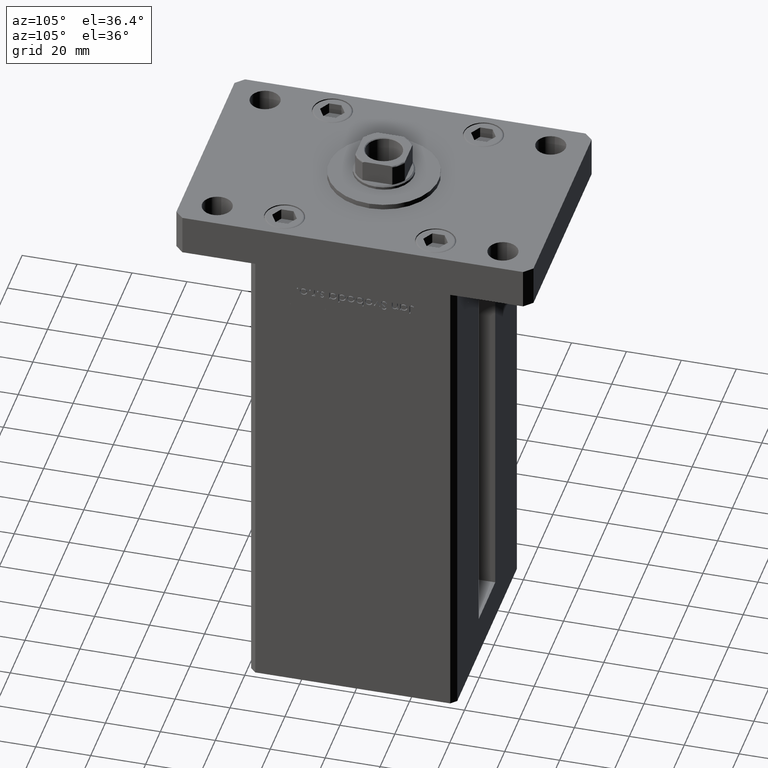
[diagram: clean part render]
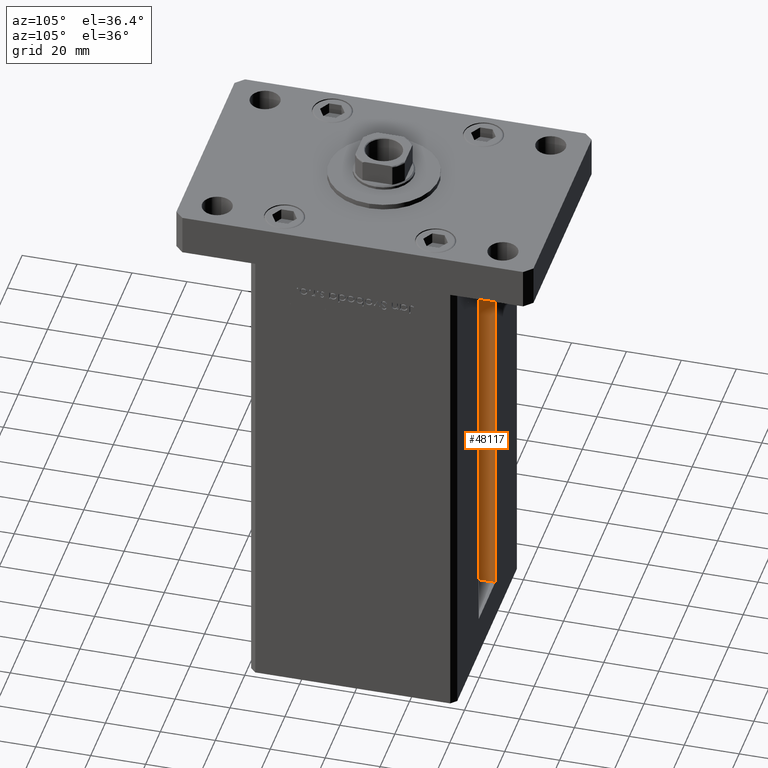
[diagram: same view with one face highlighted and labeled with its STEP entity id]
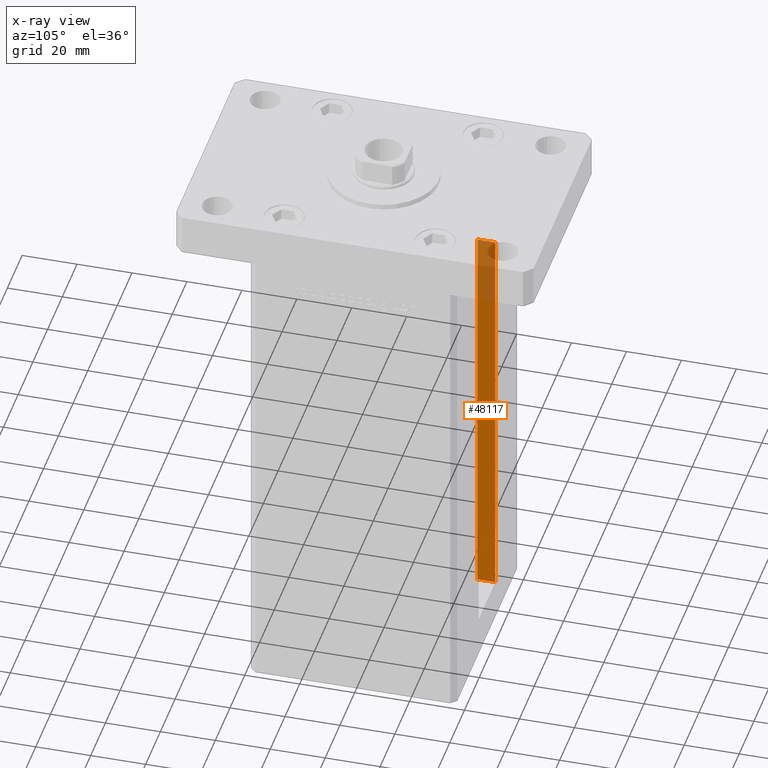
[diagram: x-ray of the same camera — body ghosted, the highlighted face saturated]
A machine part, auxiliary view. The second image highlights one B-rep face of the part: STEP entity #48117.
The next image is the same camera in x-ray: the body ghosted, the highlighted face saturated — about 24% of this face is hidden behind the body in this view.
In plain terms, the highlighted planar face has unit normal (-1, 0, 0).
Its self-contained STEP definition (entity closure, byte-faithful):
#173 = EDGE_CURVE ( 'NONE', #11369, #37025, #2906, .T. ) ;
#683 = VECTOR ( 'NONE', #26848, 1000.000000000000000 ) ;
#1005 = EDGE_CURVE ( 'NONE', #37025, #9671, #47970, .T. ) ;
#2202 = CARTESIAN_POINT ( 'NONE',  ( -11.25000000000000000, 37.50000000000000000, 148.5000000000000000 ) ) ;
#2435 = EDGE_CURVE ( 'NONE', #11369, #44290, #19723, .T. ) ;
#2906 = LINE ( 'NONE', #26575, #11865 ) ;
#4683 = CARTESIAN_POINT ( 'NONE',  ( -11.25000000000000000, 0.000000000000000000, 148.5000000000000000 ) ) ;
#6512 = ORIENTED_EDGE ( 'NONE', *, *, #2435, .T. ) ;
#6836 = VECTOR ( 'NONE', #17156, 1000.000000000000000 ) ;
#9274 = FACE_OUTER_BOUND ( 'NONE', #15007, .T. ) ;
#9671 = VERTEX_POINT ( 'NONE', #53299 ) ;
#11369 = VERTEX_POINT ( 'NONE', #38219 ) ;
#11865 = VECTOR ( 'NONE', #47436, 1000.000000000000000 ) ;
#15007 = EDGE_LOOP ( 'NONE', ( #50067, #45451, #6512, #26290 ) ) ;
#15690 = CARTESIAN_POINT ( 'NONE',  ( -11.25000000000000000, 30.99999999999999289, 0.000000000000000000 ) ) ;
#17151 = DIRECTION ( 'NONE',  ( 0.000000000000000000, 0.000000000000000000, 1.000000000000000000 ) ) ;
#17156 = DIRECTION ( 'NONE',  ( 0.000000000000000000, 1.000000000000000000, 0.000000000000000000 ) ) ;
#19723 = LINE ( 'NONE', #44635, #683 ) ;
#26290 = ORIENTED_EDGE ( 'NONE', *, *, #40500, .F. ) ;
#26575 = CARTESIAN_POINT ( 'NONE',  ( -11.25000000000000000, 30.99999999999999289, 0.000000000000000000 ) ) ;
#26848 = DIRECTION ( 'NONE',  ( -0.000000000000000000, -0.000000000000000000, 1.000000000000000000 ) ) ;
#27489 = VECTOR ( 'NONE', #52584, 1000.000000000000000 ) ;
#30152 = DIRECTION ( 'NONE',  ( -1.000000000000000000, 0.000000000000000000, 0.000000000000000000 ) ) ;
#37025 = VERTEX_POINT ( 'NONE', #47696 ) ;
#37737 = CARTESIAN_POINT ( 'NONE',  ( -11.25000000000000000, 30.99999999999999289, 0.000000000000000000 ) ) ;
#38219 = CARTESIAN_POINT ( 'NONE',  ( -11.25000000000000000, 37.50000000000000000, 0.000000000000000000 ) ) ;
#40500 = EDGE_CURVE ( 'NONE', #9671, #44290, #41814, .T. ) ;
#41814 = LINE ( 'NONE', #4683, #6836 ) ;
#44217 = AXIS2_PLACEMENT_3D ( 'NONE', #37737, #30152, #17151 ) ;
#44290 = VERTEX_POINT ( 'NONE', #2202 ) ;
#44635 = CARTESIAN_POINT ( 'NONE',  ( -11.25000000000000000, 37.50000000000000000, 0.000000000000000000 ) ) ;
#45451 = ORIENTED_EDGE ( 'NONE', *, *, #173, .F. ) ;
#46160 = PLANE ( 'NONE',  #44217 ) ;
#47436 = DIRECTION ( 'NONE',  ( -0.000000000000000000, -1.000000000000000000, -0.000000000000000000 ) ) ;
#47696 = CARTESIAN_POINT ( 'NONE',  ( -11.25000000000000000, 30.99999999999999289, 0.000000000000000000 ) ) ;
#47970 = LINE ( 'NONE', #15690, #27489 ) ;
#48117 = ADVANCED_FACE ( 'NONE', ( #9274 ), #46160, .F. ) ;
#50067 = ORIENTED_EDGE ( 'NONE', *, *, #1005, .F. ) ;
#52584 = DIRECTION ( 'NONE',  ( -0.000000000000000000, -0.000000000000000000, 1.000000000000000000 ) ) ;
#53299 = CARTESIAN_POINT ( 'NONE',  ( -11.25000000000000000, 30.99999999999999289, 148.5000000000000000 ) ) ;